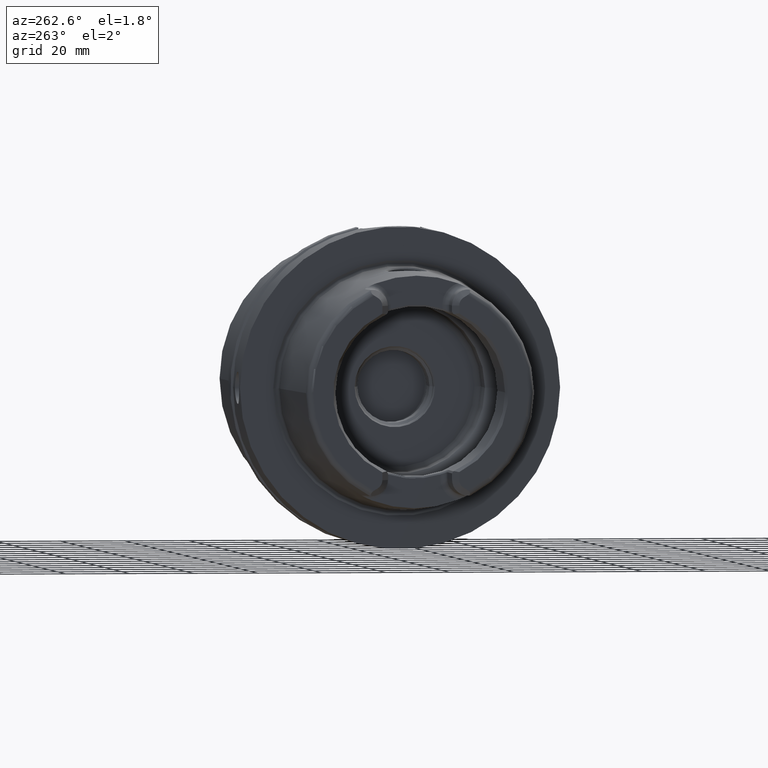
[diagram: clean part render]
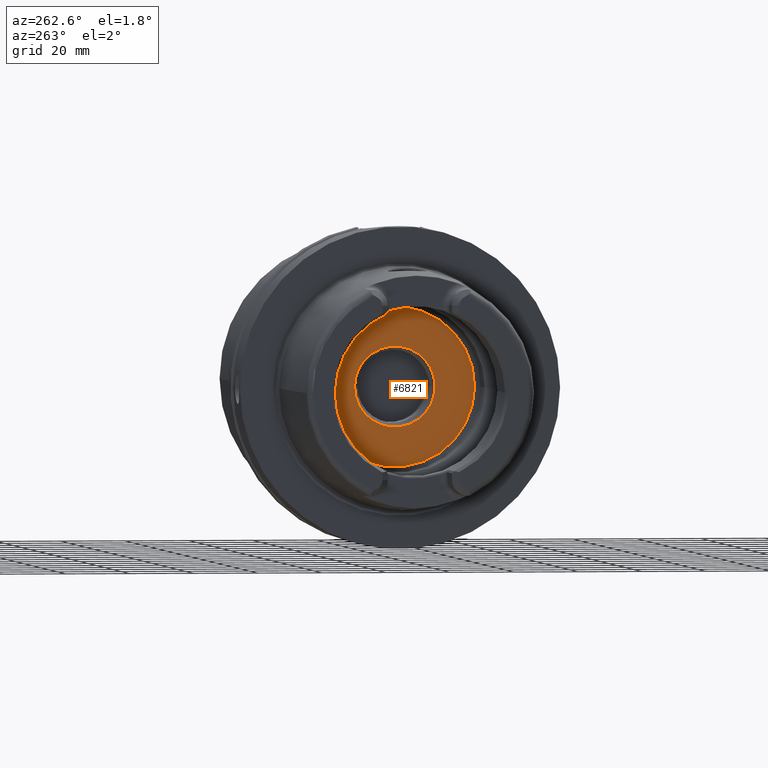
[diagram: same view with one face highlighted and labeled with its STEP entity id]
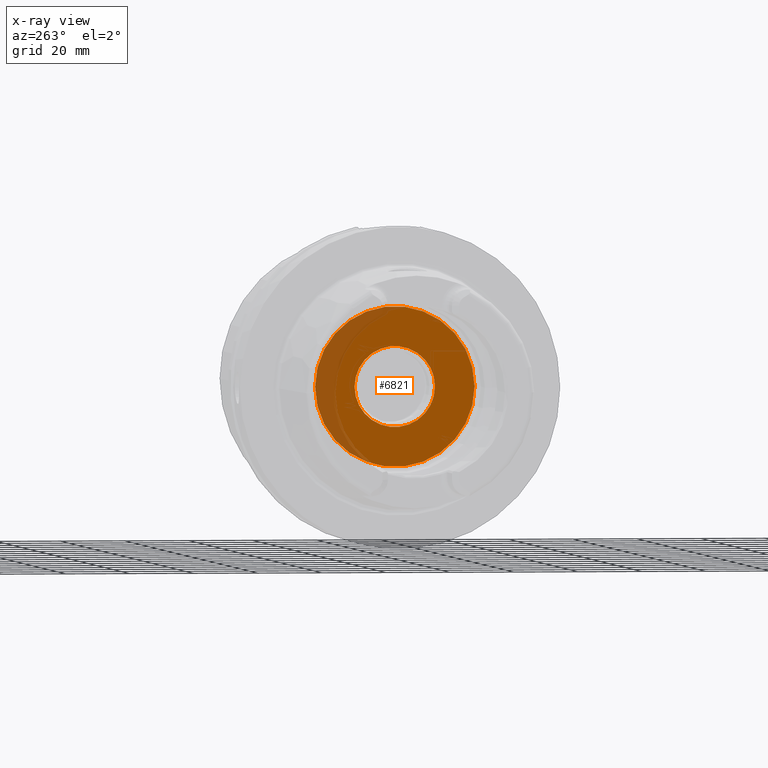
[diagram: x-ray of the same camera — body ghosted, the highlighted face saturated]
A machine part, auxiliary view. The second image highlights one B-rep face of the part: STEP entity #6821.
The next image is the same camera in x-ray: the body ghosted, the highlighted face saturated — about 20% of this face is hidden behind the body in this view.
In plain terms, the highlighted planar face has unit normal (1, 0, 0).
Its self-contained STEP definition (entity closure, byte-faithful):
#2606=CARTESIAN_POINT('',(1.25E1,0.E0,0.E0));
#2607=DIRECTION('',(1.E0,0.E0,0.E0));
#2608=DIRECTION('',(0.E0,1.E0,0.E0));
#2609=AXIS2_PLACEMENT_3D('',#2606,#2607,#2608);
#2616=CARTESIAN_POINT('',(1.25E1,0.E0,0.E0));
#2617=DIRECTION('',(-1.E0,0.E0,0.E0));
#2618=DIRECTION('',(0.E0,1.E0,0.E0));
#2619=AXIS2_PLACEMENT_3D('',#2616,#2617,#2618);
#2626=CARTESIAN_POINT('',(1.25E1,0.E0,0.E0));
#2627=DIRECTION('',(1.E0,0.E0,0.E0));
#2628=DIRECTION('',(0.E0,-1.E0,0.E0));
#2629=AXIS2_PLACEMENT_3D('',#2626,#2627,#2628);
#2631=CARTESIAN_POINT('',(1.25E1,0.E0,0.E0));
#2632=DIRECTION('',(1.E0,0.E0,0.E0));
#2633=DIRECTION('',(0.E0,1.E0,0.E0));
#2634=AXIS2_PLACEMENT_3D('',#2631,#2632,#2633);
#3071=CARTESIAN_POINT('',(1.25E1,2.49E1,0.E0));
#3073=VERTEX_POINT('',#3071);
#3075=CARTESIAN_POINT('',(1.25E1,-2.49E1,0.E0));
#3077=VERTEX_POINT('',#3075);
#3459=CARTESIAN_POINT('',(1.25E1,-1.25665E1,0.E0));
#3460=CARTESIAN_POINT('',(1.25E1,1.25665E1,0.E0));
#3461=VERTEX_POINT('',#3459);
#3462=VERTEX_POINT('',#3460);
#6806=CARTESIAN_POINT('',(1.25E1,0.E0,0.E0));
#6807=DIRECTION('',(1.E0,0.E0,0.E0));
#6808=DIRECTION('',(0.E0,-1.E0,0.E0));
#6809=AXIS2_PLACEMENT_3D('',#6806,#6807,#6808);
#6810=PLANE('',#6809);
#6811=ORIENTED_EDGE('',*,*,#6788,.T.);
#6812=ORIENTED_EDGE('',*,*,#6799,.F.);
#6813=EDGE_LOOP('',(#6811,#6812));
#6814=FACE_OUTER_BOUND('',#6813,.F.);
#6816=ORIENTED_EDGE('',*,*,#6815,.F.);
#6818=ORIENTED_EDGE('',*,*,#6817,.F.);
#6819=EDGE_LOOP('',(#6816,#6818));
#6820=FACE_BOUND('',#6819,.F.);
#6821=ADVANCED_FACE('',(#6814,#6820),#6810,.F.);
#2610=CIRCLE('',#2609,2.49E1);
#2620=CIRCLE('',#2619,2.49E1);
#2630=CIRCLE('',#2629,1.25665E1);
#2635=CIRCLE('',#2634,1.25665E1);
#6788=EDGE_CURVE('',#3073,#3077,#2610,.T.);
#6799=EDGE_CURVE('',#3073,#3077,#2620,.T.);
#6815=EDGE_CURVE('',#3461,#3462,#2630,.T.);
#6817=EDGE_CURVE('',#3462,#3461,#2635,.T.);